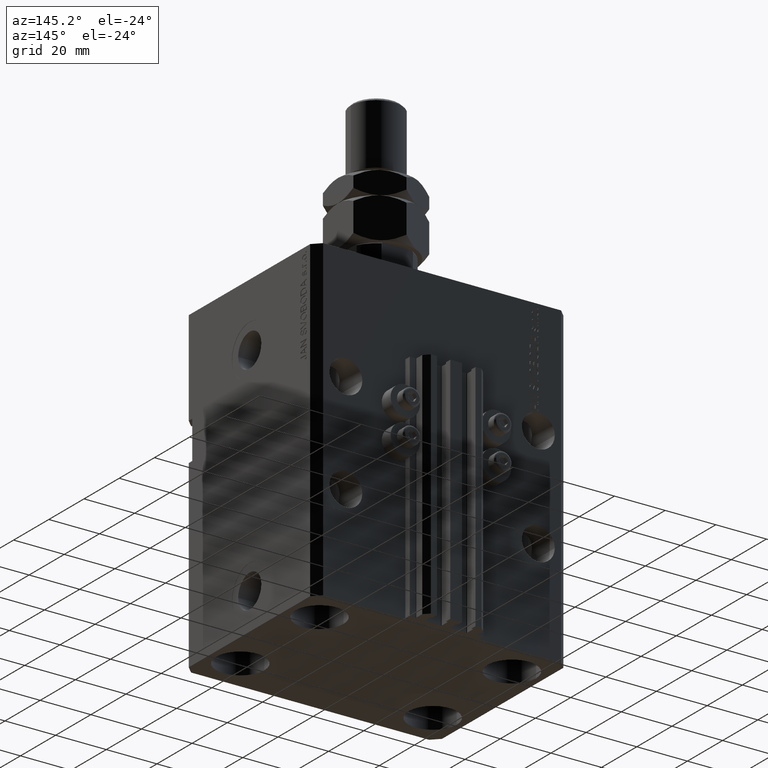
[diagram: clean part render]
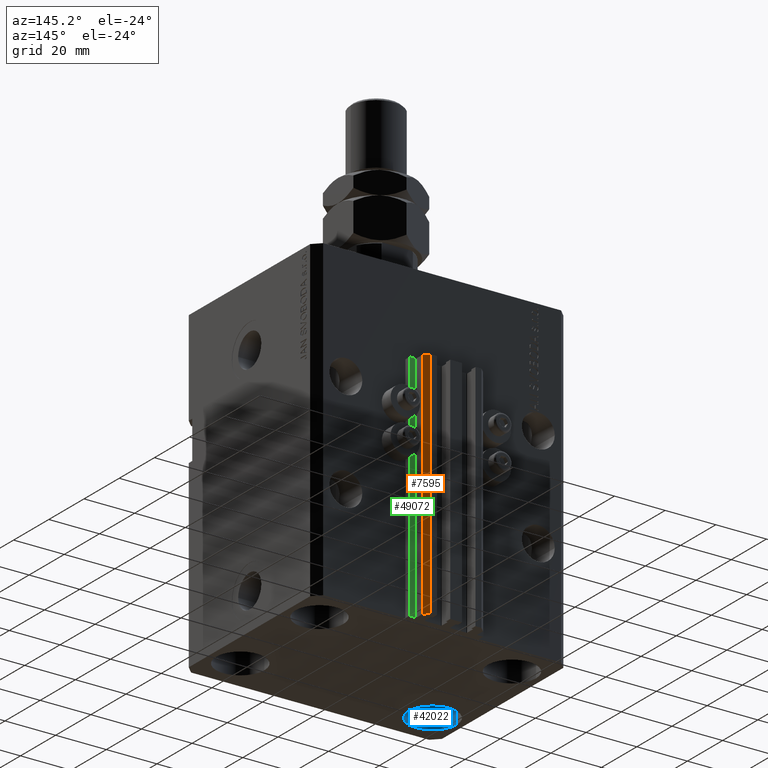
[diagram: same view with three faces highlighted in distinct colors, each labeled with its STEP entity id]
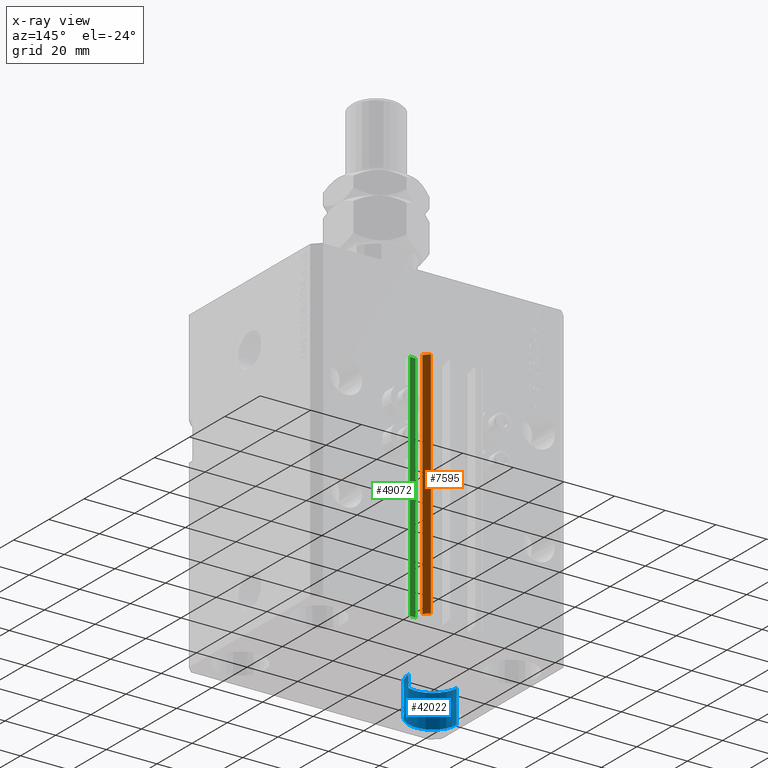
[diagram: x-ray of the same camera — body ghosted, the three highlighted faces saturated]
A machine part, auxiliary view with three faces highlighted in distinct colors.
The next image is the same camera in x-ray (body ghosted, the three faces saturated) — at least one of them is partly hidden behind the body in this view.
Their STEP definitions:

[orange] entity #7595 — the highlighted planar face has unit normal (0.7071, 0.7071, 0).
#244 = CARTESIAN_POINT ( 'NONE',  ( 12.00000000000000000, 43.50000000000002132, -125.0000000000000000 ) ) ;
#880 = CARTESIAN_POINT ( 'NONE',  ( 9.999999999999998224, 45.50000000000002842, -33.00000000000000000 ) ) ;
#1249 = EDGE_LOOP ( 'NONE', ( #2683, #48789, #18900, #38482 ) ) ;
#2683 = ORIENTED_EDGE ( 'NONE', *, *, #9740, .F. ) ;
#2968 = DIRECTION ( 'NONE',  ( 0.000000000000000000, 0.000000000000000000, 1.000000000000000000 ) ) ;
#4070 = PLANE ( 'NONE',  #27342 ) ;
#4179 = LINE ( 'NONE', #19698, #46940 ) ;
#7595 = ADVANCED_FACE ( 'NONE', ( #26973 ), #4070, .T. ) ;
#8502 = DIRECTION ( 'NONE',  ( -0.7071067811865474617, 0.7071067811865474617, 0.000000000000000000 ) ) ;
#9146 = VERTEX_POINT ( 'NONE', #880 ) ;
#9740 = EDGE_CURVE ( 'NONE', #33583, #9146, #41449, .T. ) ;
#10574 = DIRECTION ( 'NONE',  ( 0.000000000000000000, 0.000000000000000000, 1.000000000000000000 ) ) ;
#11125 = CARTESIAN_POINT ( 'NONE',  ( 12.00000000000000000, 43.50000000000002132, -125.0000000000000000 ) ) ;
#12109 = VERTEX_POINT ( 'NONE', #11125 ) ;
#15773 = DIRECTION ( 'NONE',  ( -0.7071067811865474617, 0.7071067811865474617, 0.000000000000000000 ) ) ;
#18460 = LINE ( 'NONE', #38058, #21995 ) ;
#18900 = ORIENTED_EDGE ( 'NONE', *, *, #50034, .T. ) ;
#19333 = EDGE_CURVE ( 'NONE', #44070, #9146, #18460, .T. ) ;
#19698 = CARTESIAN_POINT ( 'NONE',  ( 12.00000000000000000, 43.50000000000002132, -125.0000000000000000 ) ) ;
#21995 = VECTOR ( 'NONE', #10574, 1000.000000000000000 ) ;
#22308 = LINE ( 'NONE', #37833, #31437 ) ;
#26180 = DIRECTION ( 'NONE',  ( -0.7071067811865474617, 0.7071067811865474617, 0.000000000000000000 ) ) ;
#26973 = FACE_OUTER_BOUND ( 'NONE', #1249, .T. ) ;
#27342 = AXIS2_PLACEMENT_3D ( 'NONE', #244, #30802, #15773 ) ;
#30802 = DIRECTION ( 'NONE',  ( 0.7071067811865475727, 0.7071067811865475727, -0.000000000000000000 ) ) ;
#31437 = VECTOR ( 'NONE', #2968, 1000.000000000000000 ) ;
#32252 = CARTESIAN_POINT ( 'NONE',  ( 12.00000000000000000, 43.50000000000002132, -33.00000000000000000 ) ) ;
#33583 = VERTEX_POINT ( 'NONE', #32252 ) ;
#37833 = CARTESIAN_POINT ( 'NONE',  ( 12.00000000000000000, 43.50000000000002132, -125.0000000000000000 ) ) ;
#38058 = CARTESIAN_POINT ( 'NONE',  ( 9.999999999999998224, 45.50000000000002842, -125.0000000000000000 ) ) ;
#38482 = ORIENTED_EDGE ( 'NONE', *, *, #19333, .T. ) ;
#41449 = LINE ( 'NONE', #49331, #46126 ) ;
#41889 = CARTESIAN_POINT ( 'NONE',  ( 9.999999999999998224, 45.50000000000002842, -125.0000000000000000 ) ) ;
#44070 = VERTEX_POINT ( 'NONE', #41889 ) ;
#45098 = EDGE_CURVE ( 'NONE', #12109, #33583, #22308, .T. ) ;
#46126 = VECTOR ( 'NONE', #26180, 1000.000000000000114 ) ;
#46940 = VECTOR ( 'NONE', #8502, 1000.000000000000114 ) ;
#48789 = ORIENTED_EDGE ( 'NONE', *, *, #45098, .F. ) ;
#49331 = CARTESIAN_POINT ( 'NONE',  ( 12.00000000000000000, 43.50000000000002132, -33.00000000000000000 ) ) ;
#50034 = EDGE_CURVE ( 'NONE', #12109, #44070, #4179, .T. ) ;

[blue] entity #42022 — the highlighted cylindrical surface (edge-blend (fillet) strip) has radius 9.5 mm, axis along (-0, -0, -1).
#1280 = VECTOR ( 'NONE', #34173, 1000.000000000000000 ) ;
#3628 = ORIENTED_EDGE ( 'NONE', *, *, #15592, .T. ) ;
#4841 = CARTESIAN_POINT ( 'NONE',  ( -28.50000000000000355, -22.50000000000000000, -125.0000000000000000 ) ) ;
#5241 = DIRECTION ( 'NONE',  ( -1.000000000000000000, 0.000000000000000000, 0.000000000000000000 ) ) ;
#7832 = DIRECTION ( 'NONE',  ( -0.000000000000000000, -0.000000000000000000, -1.000000000000000000 ) ) ;
#8808 = CARTESIAN_POINT ( 'NONE',  ( -38.00000000000000711, -22.50000000000000000, -112.0000000000000000 ) ) ;
#9305 = DIRECTION ( 'NONE',  ( -0.000000000000000000, -0.000000000000000000, -1.000000000000000000 ) ) ;
#9765 = VECTOR ( 'NONE', #7832, 1000.000000000000000 ) ;
#10017 = EDGE_LOOP ( 'NONE', ( #21684, #3628, #49432, #42005 ) ) ;
#10198 = AXIS2_PLACEMENT_3D ( 'NONE', #8808, #9305, #5241 ) ;
#11644 = CARTESIAN_POINT ( 'NONE',  ( -28.50000000000000355, -22.50000000000000000, -112.0000000000000000 ) ) ;
#12900 = FACE_OUTER_BOUND ( 'NONE', #10017, .T. ) ;
#15592 = EDGE_CURVE ( 'NONE', #29995, #38070, #46240, .T. ) ;
#16341 = CIRCLE ( 'NONE', #30987, 9.500000000000001776 ) ;
#17972 = CARTESIAN_POINT ( 'NONE',  ( -38.00000000000000711, -22.50000000000000000, -112.0000000000000000 ) ) ;
#18085 = DIRECTION ( 'NONE',  ( 1.000000000000000000, 0.000000000000000000, 0.000000000000000000 ) ) ;
#20709 = EDGE_CURVE ( 'NONE', #46577, #38070, #44770, .T. ) ;
#21684 = ORIENTED_EDGE ( 'NONE', *, *, #28573, .T. ) ;
#25714 = DIRECTION ( 'NONE',  ( -0.000000000000000000, -0.000000000000000000, 1.000000000000000000 ) ) ;
#28573 = EDGE_CURVE ( 'NONE', #43893, #29995, #16341, .T. ) ;
#29932 = DIRECTION ( 'NONE',  ( 1.000000000000000000, 0.000000000000000000, 0.000000000000000000 ) ) ;
#29984 = CARTESIAN_POINT ( 'NONE',  ( -47.50000000000000711, -22.50000000000000000, -112.0000000000000000 ) ) ;
#29995 = VERTEX_POINT ( 'NONE', #38522 ) ;
#30145 = AXIS2_PLACEMENT_3D ( 'NONE', #48631, #25714, #18085 ) ;
#30987 = AXIS2_PLACEMENT_3D ( 'NONE', #17972, #45198, #29932 ) ;
#31354 = CARTESIAN_POINT ( 'NONE',  ( -47.50000000000000711, -22.50000000000000000, -112.0000000000000000 ) ) ;
#31962 = CYLINDRICAL_SURFACE ( 'NONE', #10198, 9.500000000000001776 ) ;
#34173 = DIRECTION ( 'NONE',  ( -0.000000000000000000, -0.000000000000000000, -1.000000000000000000 ) ) ;
#38070 = VERTEX_POINT ( 'NONE', #4841 ) ;
#38522 = CARTESIAN_POINT ( 'NONE',  ( -28.50000000000000355, -22.50000000000000000, -112.0000000000000000 ) ) ;
#42005 = ORIENTED_EDGE ( 'NONE', *, *, #43321, .F. ) ;
#42022 = ADVANCED_FACE ( 'NONE', ( #12900 ), #31962, .F. ) ;
#43321 = EDGE_CURVE ( 'NONE', #43893, #46577, #48931, .T. ) ;
#43506 = CARTESIAN_POINT ( 'NONE',  ( -47.50000000000000711, -22.50000000000000000, -125.0000000000000000 ) ) ;
#43893 = VERTEX_POINT ( 'NONE', #29984 ) ;
#44770 = CIRCLE ( 'NONE', #30145, 9.500000000000001776 ) ;
#45198 = DIRECTION ( 'NONE',  ( -0.000000000000000000, -0.000000000000000000, 1.000000000000000000 ) ) ;
#46240 = LINE ( 'NONE', #11644, #9765 ) ;
#46577 = VERTEX_POINT ( 'NONE', #43506 ) ;
#48631 = CARTESIAN_POINT ( 'NONE',  ( -38.00000000000000711, -22.50000000000000000, -125.0000000000000000 ) ) ;
#48931 = LINE ( 'NONE', #31354, #1280 ) ;
#49432 = ORIENTED_EDGE ( 'NONE', *, *, #20709, .F. ) ;

[green] entity #49072 — the highlighted planar face has unit normal (0, 1, 0).
#1420 = LINE ( 'NONE', #47477, #5768 ) ;
#4085 = EDGE_CURVE ( 'NONE', #49854, #47002, #36951, .T. ) ;
#5652 = CARTESIAN_POINT ( 'NONE',  ( 14.49999999999999645, 40.00000000000002132, -125.0000000000000000 ) ) ;
#5768 = VECTOR ( 'NONE', #24069, 1000.000000000000000 ) ;
#6178 = CARTESIAN_POINT ( 'NONE',  ( 14.49999999999999645, 40.00000000000002132, -125.0000000000000000 ) ) ;
#6616 = CARTESIAN_POINT ( 'NONE',  ( 14.49999999999999645, 40.00000000000002132, -33.00000000000000000 ) ) ;
#11351 = ORIENTED_EDGE ( 'NONE', *, *, #4085, .T. ) ;
#12733 = EDGE_CURVE ( 'NONE', #47228, #49090, #21879, .T. ) ;
#13664 = EDGE_CURVE ( 'NONE', #49854, #47228, #48913, .T. ) ;
#14109 = DIRECTION ( 'NONE',  ( 0.000000000000000000, 0.000000000000000000, 1.000000000000000000 ) ) ;
#15403 = VECTOR ( 'NONE', #17116, 1000.000000000000000 ) ;
#17116 = DIRECTION ( 'NONE',  ( 0.000000000000000000, 0.000000000000000000, 1.000000000000000000 ) ) ;
#17905 = PLANE ( 'NONE',  #41347 ) ;
#21217 = EDGE_CURVE ( 'NONE', #47002, #49090, #1420, .T. ) ;
#21879 = LINE ( 'NONE', #6616, #26721 ) ;
#22780 = CARTESIAN_POINT ( 'NONE',  ( 14.49999999999999645, 40.00000000000002132, -33.00000000000000000 ) ) ;
#24069 = DIRECTION ( 'NONE',  ( 0.000000000000000000, 0.000000000000000000, 1.000000000000000000 ) ) ;
#24923 = EDGE_LOOP ( 'NONE', ( #45618, #48196, #11351, #33992 ) ) ;
#26721 = VECTOR ( 'NONE', #48599, 1000.000000000000000 ) ;
#28791 = DIRECTION ( 'NONE',  ( -1.000000000000000000, 0.000000000000000000, 0.000000000000000000 ) ) ;
#32713 = CARTESIAN_POINT ( 'NONE',  ( 14.49999999999999645, 40.00000000000002132, -125.0000000000000000 ) ) ;
#33992 = ORIENTED_EDGE ( 'NONE', *, *, #21217, .T. ) ;
#36951 = LINE ( 'NONE', #5652, #46021 ) ;
#41347 = AXIS2_PLACEMENT_3D ( 'NONE', #48948, #49454, #14109 ) ;
#41567 = CARTESIAN_POINT ( 'NONE',  ( 12.20000000000000107, 40.00000000000002132, -33.00000000000000000 ) ) ;
#43402 = CARTESIAN_POINT ( 'NONE',  ( 12.20000000000000107, 40.00000000000002132, -125.0000000000000000 ) ) ;
#44884 = FACE_OUTER_BOUND ( 'NONE', #24923, .T. ) ;
#45618 = ORIENTED_EDGE ( 'NONE', *, *, #12733, .F. ) ;
#46021 = VECTOR ( 'NONE', #28791, 1000.000000000000000 ) ;
#47002 = VERTEX_POINT ( 'NONE', #43402 ) ;
#47228 = VERTEX_POINT ( 'NONE', #22780 ) ;
#47477 = CARTESIAN_POINT ( 'NONE',  ( 12.20000000000000107, 40.00000000000002132, -125.0000000000000000 ) ) ;
#48196 = ORIENTED_EDGE ( 'NONE', *, *, #13664, .F. ) ;
#48599 = DIRECTION ( 'NONE',  ( -1.000000000000000000, 0.000000000000000000, 0.000000000000000000 ) ) ;
#48913 = LINE ( 'NONE', #6178, #15403 ) ;
#48948 = CARTESIAN_POINT ( 'NONE',  ( 14.49999999999999645, 40.00000000000002132, -125.0000000000000000 ) ) ;
#49072 = ADVANCED_FACE ( 'NONE', ( #44884 ), #17905, .T. ) ;
#49090 = VERTEX_POINT ( 'NONE', #41567 ) ;
#49454 = DIRECTION ( 'NONE',  ( 0.000000000000000000, 1.000000000000000000, -0.000000000000000000 ) ) ;
#49854 = VERTEX_POINT ( 'NONE', #32713 ) ;